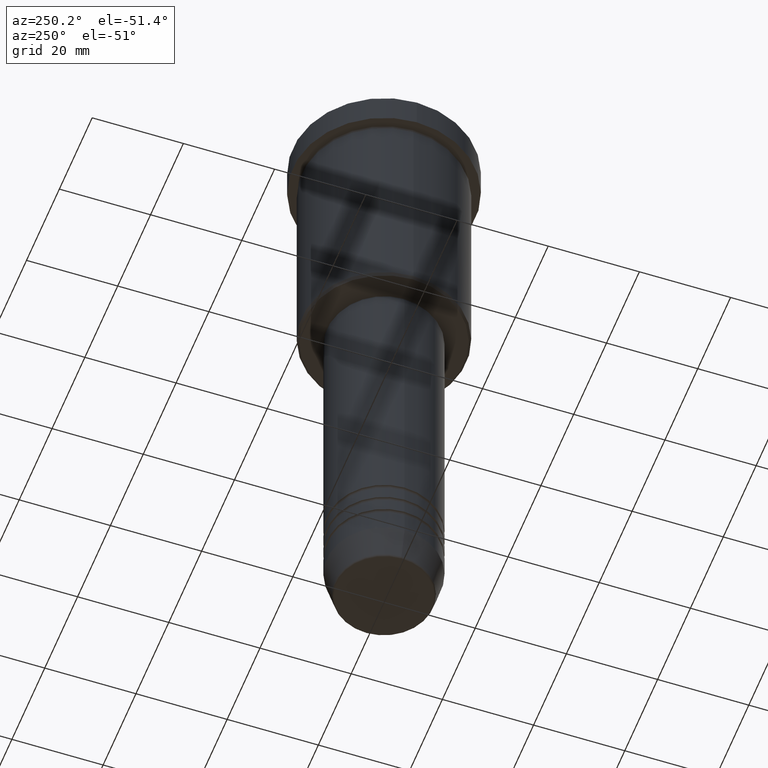
[diagram: clean part render]
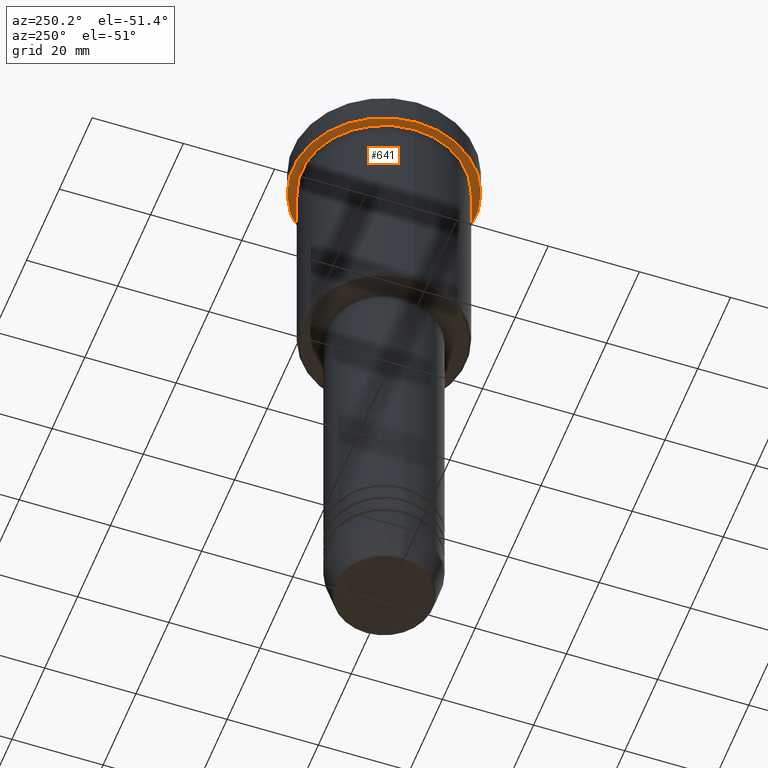
[diagram: same view with one face highlighted and labeled with its STEP entity id]
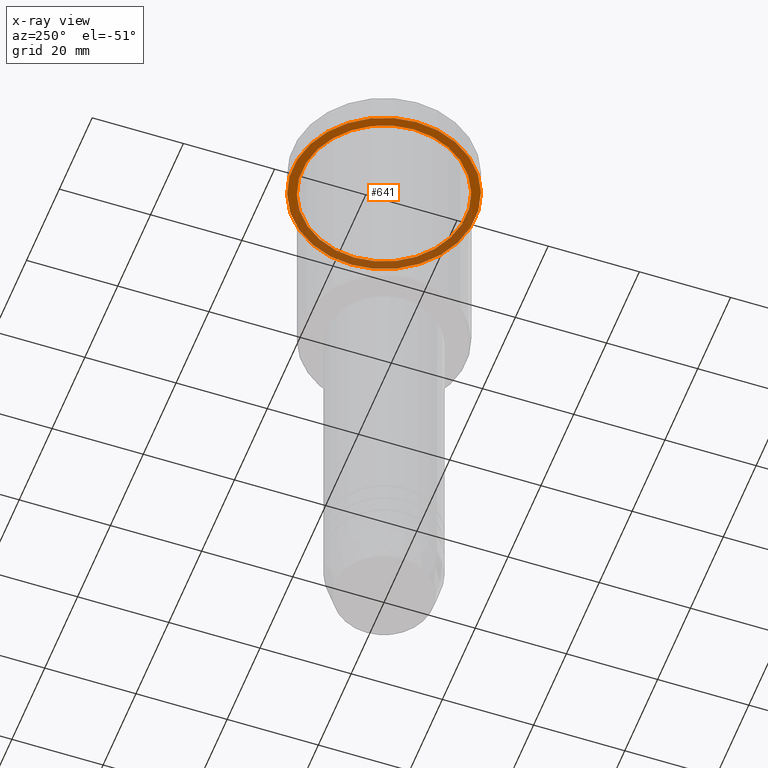
[diagram: x-ray of the same camera — body ghosted, the highlighted face saturated]
A machine part, auxiliary view. The second image highlights one B-rep face of the part: STEP entity #641.
The next image is the same camera in x-ray: the body ghosted, the highlighted face saturated — about 39% of this face is hidden behind the body in this view.
In plain terms, the highlighted planar face has unit normal (0, 0, -1).
Its self-contained STEP definition (entity closure, byte-faithful):
#1 = DIRECTION ( 'NONE',  ( -0.000000000000000000, -0.000000000000000000, 1.000000000000000000 ) ) ;
#76 = DIRECTION ( 'NONE',  ( 0.000000000000000000, 0.000000000000000000, -1.000000000000000000 ) ) ;
#88 = CARTESIAN_POINT ( 'NONE',  ( 0.000000000000000000, 0.000000000000000000, -6.999999999999995559 ) ) ;
#94 = CARTESIAN_POINT ( 'NONE',  ( 0.000000000000000000, 20.00000000000000000, -6.999999999999995559 ) ) ;
#101 = CIRCLE ( 'NONE', #142, 20.00000000000000000 ) ;
#113 = VERTEX_POINT ( 'NONE', #1076 ) ;
#115 = EDGE_LOOP ( 'NONE', ( #200, #881 ) ) ;
#122 = CARTESIAN_POINT ( 'NONE',  ( 0.000000000000000000, 0.000000000000000000, -6.999999999999995559 ) ) ;
#134 = ORIENTED_EDGE ( 'NONE', *, *, #268, .T. ) ;
#142 = AXIS2_PLACEMENT_3D ( 'NONE', #122, #944, #848 ) ;
#167 = CARTESIAN_POINT ( 'NONE',  ( -18.00000000000000000, 0.000000000000000000, -6.999999999999995559 ) ) ;
#200 = ORIENTED_EDGE ( 'NONE', *, *, #746, .F. ) ;
#234 = DIRECTION ( 'NONE',  ( -0.000000000000000000, -0.000000000000000000, 1.000000000000000000 ) ) ;
#268 = EDGE_CURVE ( 'NONE', #113, #289, #1095, .T. ) ;
#279 = FACE_BOUND ( 'NONE', #996, .T. ) ;
#289 = VERTEX_POINT ( 'NONE', #167 ) ;
#321 = CIRCLE ( 'NONE', #853, 20.00000000000000000 ) ;
#370 = DIRECTION ( 'NONE',  ( 1.000000000000000000, 0.000000000000000000, 0.000000000000000000 ) ) ;
#464 = FACE_OUTER_BOUND ( 'NONE', #115, .T. ) ;
#513 = CIRCLE ( 'NONE', #873, 18.00000000000000000 ) ;
#526 = ORIENTED_EDGE ( 'NONE', *, *, #643, .T. ) ;
#550 = DIRECTION ( 'NONE',  ( -1.000000000000000000, 0.000000000000000000, -0.000000000000000000 ) ) ;
#555 = DIRECTION ( 'NONE',  ( -1.000000000000000000, 0.000000000000000000, 0.000000000000000000 ) ) ;
#641 = ADVANCED_FACE ( 'NONE', ( #279, #464 ), #904, .T. ) ;
#643 = EDGE_CURVE ( 'NONE', #289, #113, #513, .T. ) ;
#719 = AXIS2_PLACEMENT_3D ( 'NONE', #94, #76, #550 ) ;
#722 = VERTEX_POINT ( 'NONE', #925 ) ;
#733 = DIRECTION ( 'NONE',  ( -1.000000000000000000, 0.000000000000000000, 0.000000000000000000 ) ) ;
#746 = EDGE_CURVE ( 'NONE', #942, #722, #101, .T. ) ;
#817 = CARTESIAN_POINT ( 'NONE',  ( 0.000000000000000000, 0.000000000000000000, -6.999999999999995559 ) ) ;
#848 = DIRECTION ( 'NONE',  ( 1.000000000000000000, 0.000000000000000000, 0.000000000000000000 ) ) ;
#853 = AXIS2_PLACEMENT_3D ( 'NONE', #1057, #234, #370 ) ;
#873 = AXIS2_PLACEMENT_3D ( 'NONE', #88, #1, #733 ) ;
#874 = CARTESIAN_POINT ( 'NONE',  ( 20.00000000000000000, 0.000000000000000000, -6.999999999999995559 ) ) ;
#881 = ORIENTED_EDGE ( 'NONE', *, *, #943, .F. ) ;
#904 = PLANE ( 'NONE',  #719 ) ;
#925 = CARTESIAN_POINT ( 'NONE',  ( -20.00000000000000000, 2.449293598294706513E-15, -6.999999999999995559 ) ) ;
#926 = DIRECTION ( 'NONE',  ( -0.000000000000000000, -0.000000000000000000, 1.000000000000000000 ) ) ;
#942 = VERTEX_POINT ( 'NONE', #874 ) ;
#943 = EDGE_CURVE ( 'NONE', #722, #942, #321, .T. ) ;
#944 = DIRECTION ( 'NONE',  ( -0.000000000000000000, -0.000000000000000000, 1.000000000000000000 ) ) ;
#996 = EDGE_LOOP ( 'NONE', ( #526, #134 ) ) ;
#1057 = CARTESIAN_POINT ( 'NONE',  ( 0.000000000000000000, 0.000000000000000000, -6.999999999999995559 ) ) ;
#1076 = CARTESIAN_POINT ( 'NONE',  ( 18.00000000000000000, 2.204364238465235428E-15, -6.999999999999995559 ) ) ;
#1095 = CIRCLE ( 'NONE', #1170, 18.00000000000000000 ) ;
#1170 = AXIS2_PLACEMENT_3D ( 'NONE', #817, #926, #555 ) ;